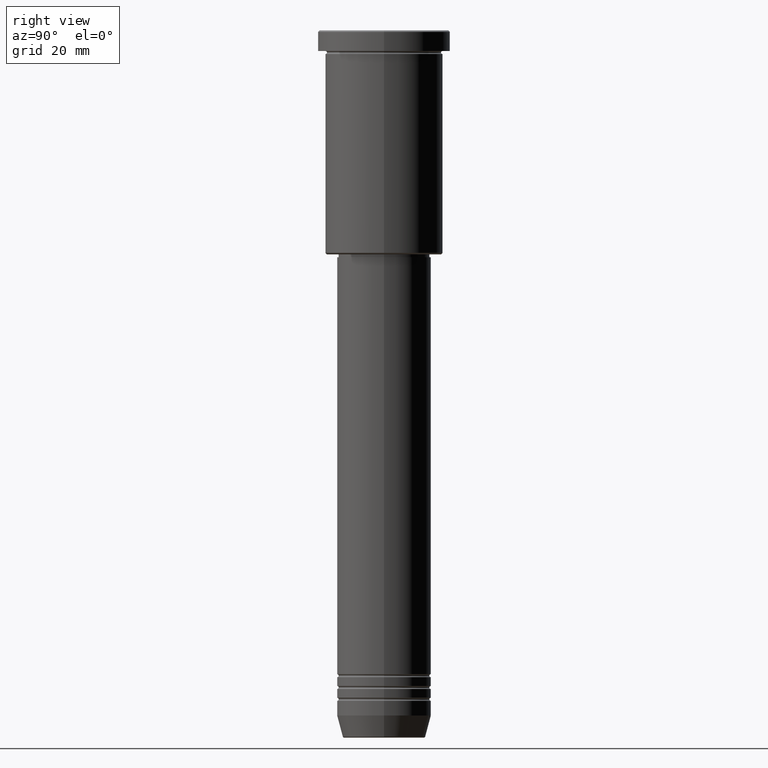
[diagram: clean part render]
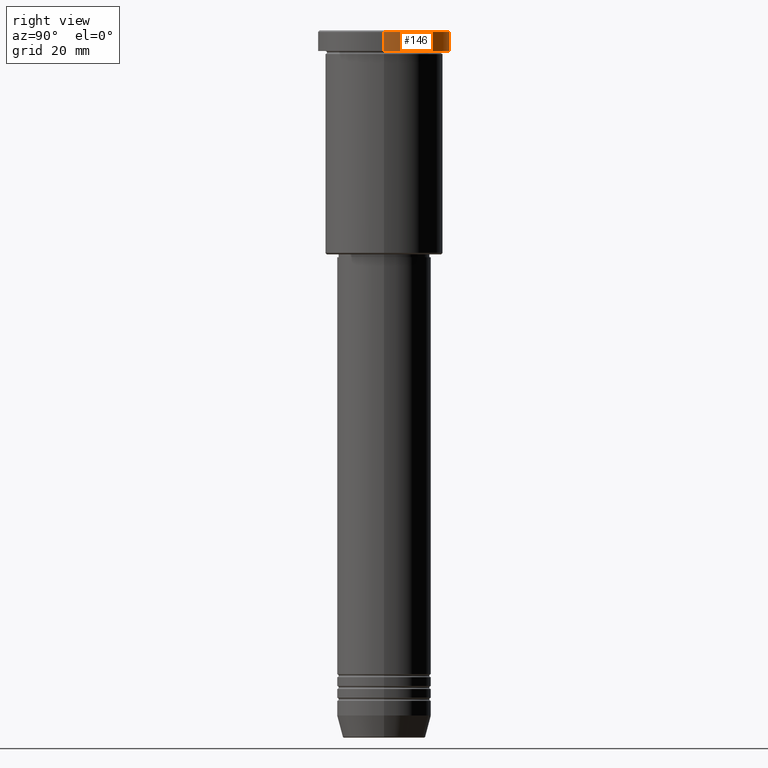
[diagram: same view with one face highlighted and labeled with its STEP entity id]
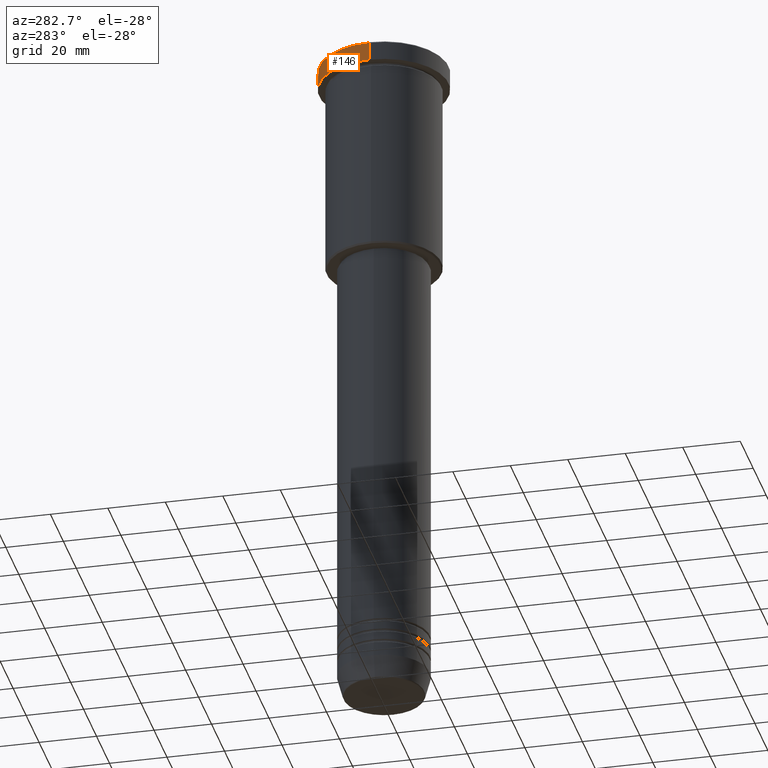
[diagram: same view with one face highlighted and labeled with its STEP entity id]
A machine part, right view. The second image highlights one B-rep face of the part: STEP entity #146.
A second angle (auxiliary view) of the same face is appended — the face is thin or edge-on in the first view.
In plain terms, the highlighted cylindrical surface (partial cylindrical patch) has radius 22.5 mm, axis along (-0, -0, 1).
Its self-contained STEP definition (entity closure, byte-faithful):
#14 = DIRECTION ( 'NONE',  ( 0.000000000000000000, 0.000000000000000000, -1.000000000000000000 ) ) ;
#34 = CARTESIAN_POINT ( 'NONE',  ( 22.50000000000000000, 0.000000000000000000, 0.000000000000000000 ) ) ;
#36 = CARTESIAN_POINT ( 'NONE',  ( -22.50000000000000000, 2.755455298081544778E-15, -6.999999999999995559 ) ) ;
#114 = CARTESIAN_POINT ( 'NONE',  ( -22.50000000000000000, 2.755455298081544778E-15, -0.5000000000000490719 ) ) ;
#122 = EDGE_CURVE ( 'NONE', #590, #516, #639, .T. ) ;
#123 = VECTOR ( 'NONE', #886, 1000.000000000000000 ) ;
#145 = CIRCLE ( 'NONE', #756, 22.50000000000000000 ) ;
#146 = ADVANCED_FACE ( 'NONE', ( #159 ), #442, .T. ) ;
#159 = FACE_OUTER_BOUND ( 'NONE', #240, .T. ) ;
#209 = CARTESIAN_POINT ( 'NONE',  ( 0.000000000000000000, 0.000000000000000000, -0.5000000000000490719 ) ) ;
#234 = DIRECTION ( 'NONE',  ( -0.000000000000000000, -0.000000000000000000, 1.000000000000000000 ) ) ;
#240 = EDGE_LOOP ( 'NONE', ( #366, #1132, #265, #360 ) ) ;
#253 = AXIS2_PLACEMENT_3D ( 'NONE', #349, #365, #984 ) ;
#265 = ORIENTED_EDGE ( 'NONE', *, *, #1174, .T. ) ;
#272 = VERTEX_POINT ( 'NONE', #876 ) ;
#311 = CIRCLE ( 'NONE', #939, 22.50000000000000000 ) ;
#349 = CARTESIAN_POINT ( 'NONE',  ( 0.000000000000000000, 0.000000000000000000, 0.000000000000000000 ) ) ;
#360 = ORIENTED_EDGE ( 'NONE', *, *, #744, .F. ) ;
#365 = DIRECTION ( 'NONE',  ( -0.000000000000000000, -0.000000000000000000, 1.000000000000000000 ) ) ;
#366 = ORIENTED_EDGE ( 'NONE', *, *, #831, .T. ) ;
#380 = DIRECTION ( 'NONE',  ( 1.000000000000000000, 0.000000000000000000, 0.000000000000000000 ) ) ;
#442 = CYLINDRICAL_SURFACE ( 'NONE', #253, 22.50000000000000000 ) ;
#501 = DIRECTION ( 'NONE',  ( -0.000000000000000000, -0.000000000000000000, 1.000000000000000000 ) ) ;
#516 = VERTEX_POINT ( 'NONE', #114 ) ;
#564 = CARTESIAN_POINT ( 'NONE',  ( 22.50000000000000000, 0.000000000000000000, -0.5000000000000490719 ) ) ;
#590 = VERTEX_POINT ( 'NONE', #36 ) ;
#614 = CARTESIAN_POINT ( 'NONE',  ( 0.000000000000000000, 0.000000000000000000, -6.999999999999995559 ) ) ;
#639 = LINE ( 'NONE', #976, #123 ) ;
#676 = LINE ( 'NONE', #34, #909 ) ;
#744 = EDGE_CURVE ( 'NONE', #272, #1100, #676, .T. ) ;
#756 = AXIS2_PLACEMENT_3D ( 'NONE', #614, #234, #801 ) ;
#801 = DIRECTION ( 'NONE',  ( 1.000000000000000000, 0.000000000000000000, 0.000000000000000000 ) ) ;
#831 = EDGE_CURVE ( 'NONE', #272, #590, #145, .T. ) ;
#876 = CARTESIAN_POINT ( 'NONE',  ( 22.50000000000000000, 0.000000000000000000, -6.999999999999995559 ) ) ;
#886 = DIRECTION ( 'NONE',  ( -0.000000000000000000, -0.000000000000000000, 1.000000000000000000 ) ) ;
#909 = VECTOR ( 'NONE', #501, 1000.000000000000000 ) ;
#939 = AXIS2_PLACEMENT_3D ( 'NONE', #209, #14, #380 ) ;
#976 = CARTESIAN_POINT ( 'NONE',  ( -22.50000000000000000, 2.755455298081544778E-15, 0.000000000000000000 ) ) ;
#984 = DIRECTION ( 'NONE',  ( 1.000000000000000000, 0.000000000000000000, 0.000000000000000000 ) ) ;
#1100 = VERTEX_POINT ( 'NONE', #564 ) ;
#1132 = ORIENTED_EDGE ( 'NONE', *, *, #122, .T. ) ;
#1174 = EDGE_CURVE ( 'NONE', #516, #1100, #311, .T. ) ;